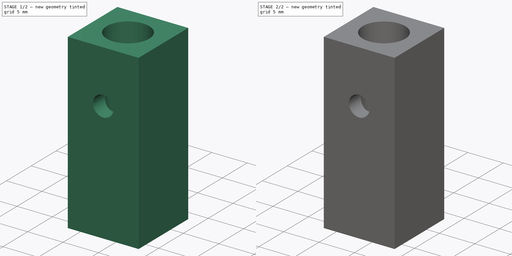
[diagram: build sequence overview — one tinted view per stage of 2, left to right]
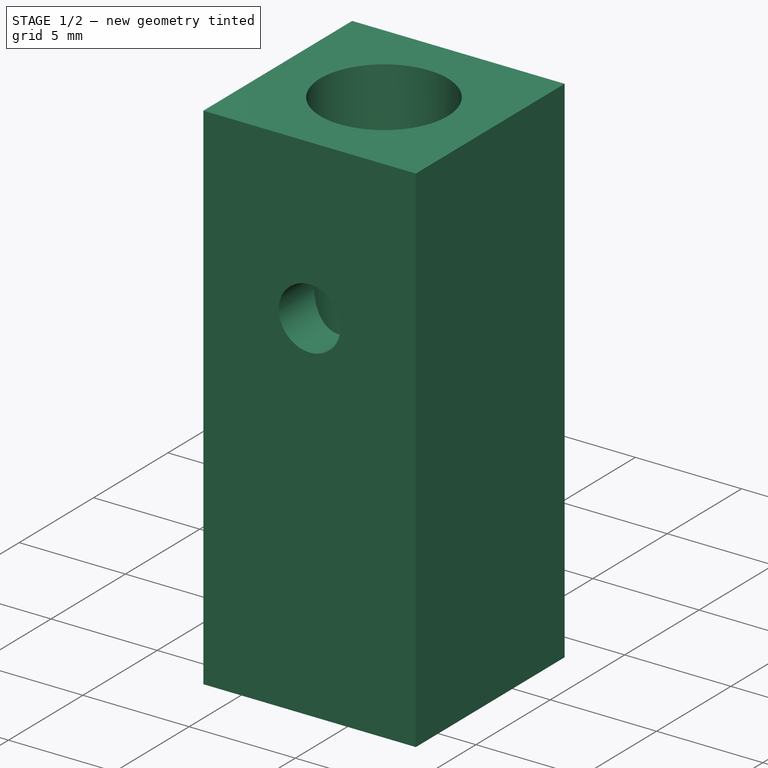
[diagram: stage 1 of 2 — iso view after this stage's code; geometry added in this stage tinted green]
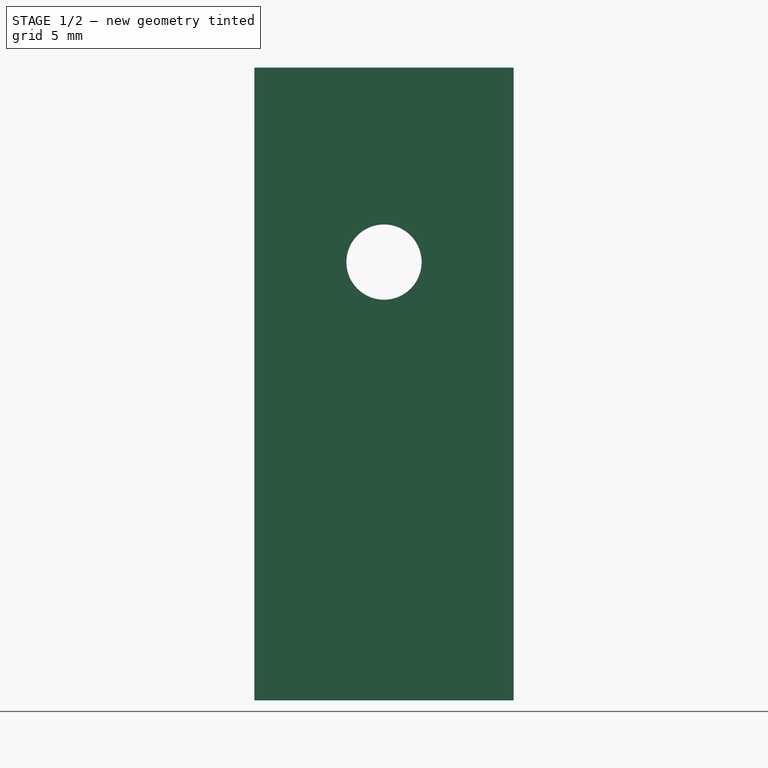
[diagram: stage 1 of 2 — front view after this stage's code; geometry added in this stage tinted green]
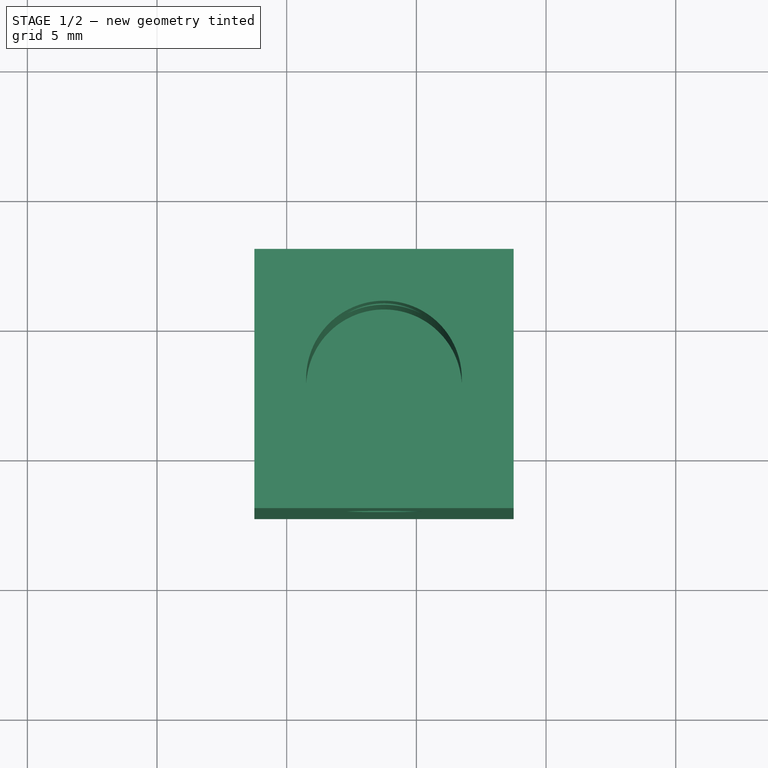
[diagram: stage 1 of 2 — top view after this stage's code; geometry added in this stage tinted green]
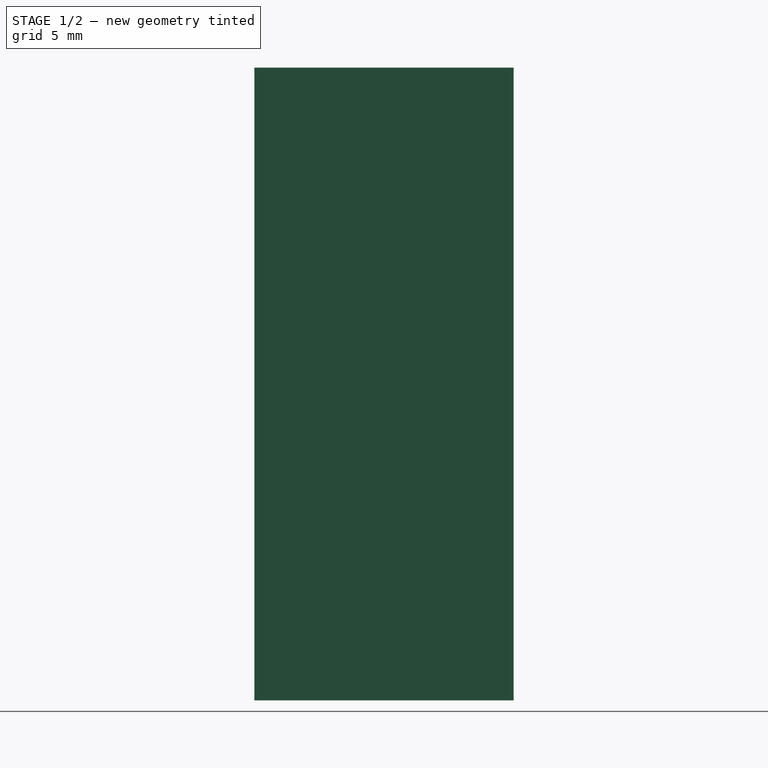
[diagram: stage 1 of 2 — right view after this stage's code; geometry added in this stage tinted green]
FCSTD DOCUMENT  (FreeCAD 2021.911R24301 +3846 (Git))
Label: Breakout_Dealie_Left_V2
License: All rights reserved
LicenseURL: http://en.wikipedia.org/wiki/All_rights_reserved
objects: PartDesign::SubShapeBinder×3, Sketcher::SketchObject×3, PartDesign::Pocket×2, PartDesign::Pad×1, PartDesign::Body×1, Part::Feature×1, Part::Refine×1, App::DocumentObjectGroup×1
note: 18 computed .brp shape members not serialized (recipe doc carries the construction recipe); baked Part::Feature solids carry a one-line shape summary decoded from their .brp

FEATURE [PartDesign::SubShapeBinder] Binder004  label="Binder004(Breakout_Dealie_Left_V2001 (Solid)001)"
  BindCopyOnChange = 0
  BindMode = 0
  ClaimChildren = false
  Context = -> Body001 [Binder004.]
  FillStyle = 0
  Fuse = false
  MakeFace = true
  PartialLoad = false
  Relative = true
  Support = -> [Refined002[Face2]]
  _Version = 7
FEATURE [Sketcher::SketchObject] Sketch004
  ExternalGeometry = -> [Binder004]
  FullyConstrained = true
  MapMode = 5
  Placement = pos=(0,437.746,0) rot=(0,0.707107,0.707107;3.14159rad)
  Support = -> [Binder004]
  sketch-geometry (6):
    g0: Circle [constr] CenterX=-423.752 CenterY=-87.6997 CenterZ=0 NormalX=0 NormalY=0 NormalZ=1 AngleXU=0 Radius=1.5
    g1: Circle CenterX=-423.752 CenterY=-87.6997 CenterZ=0 NormalX=0 NormalY=0 NormalZ=1 AngleXU=0 Radius=1.45
    g2: LineSegment StartX=-428.752 StartY=-80.1997 StartZ=0 EndX=-418.752 EndY=-80.1997 EndZ=0
    g3: LineSegment StartX=-418.752 StartY=-80.1997 StartZ=0 EndX=-418.752 EndY=-104.6 EndZ=0
    g4: LineSegment StartX=-418.752 StartY=-104.6 StartZ=0 EndX=-428.752 EndY=-104.6 EndZ=0
    g5: LineSegment StartX=-428.752 StartY=-104.6 StartZ=0 EndX=-428.752 EndY=-80.1997 EndZ=0
  constraints (15):
    c: PointOnObject(g-5,g0)
    c: PointOnObject(g-6,g0)
    c: PointOnObject(g-7,g0)
    c: Coincident(g1,g0)
    c: Diameter(g1) = 2.9
    c: Coincident(g2,g3)
    c: Coincident(g3,g4)
    c: Coincident(g4,g5)
    c: Coincident(g5,g2)
    c: Horizontal(g2)
    c: Horizontal(g4)
    c: Vertical(g3)
    c: Vertical(g5)
    c: Coincident(g2,g-3)
    c: Coincident(g3,g-4)
FEATURE [PartDesign::Pad] Pad002
  ClaimChildren = false
  Direction = (1,1,1)
  Fit = 0
  FitJoin = 0
  InnerFit = 0
  InnerFitJoin = 0
  InnerTaperAngle = 0
  InnerTaperAngleRev = 0
  Length = 10
  Length2 = 100
  Linearize = true
  NewSolid = false
  Profile = -> Sketch004
  Refine = true
  Reversed = true
  Suppress = false
  Type = 0
  _ProfileBasedVersion = 1
FEATURE [PartDesign::SubShapeBinder] Binder005  label="Binder005(Breakout_Dealie_Left_V2001 (Solid)001)"
  BindCopyOnChange = 0
  BindMode = 0
  ClaimChildren = false
  Context = -> Body001 [Binder005.]
  FillStyle = 0
  Fuse = false
  MakeFace = true
  PartialLoad = false
  Relative = true
  Support = -> [Refined002[Face994]]
  _Version = 7
FEATURE [Sketcher::SketchObject] Sketch005
  ExternalGeometry = -> [Binder005]
  FullyConstrained = true
  MapMode = 5
  Placement = pos=(0,0,-80.1997) rot=(0,0,1;0rad)
  Support = -> [Binder005]
  sketch-geometry (1):
    g0: Circle CenterX=423.752 CenterY=432.746 CenterZ=0 NormalX=0 NormalY=0 NormalZ=1 AngleXU=0 Radius=2.99999
  constraints (3):
    c: PointOnObject(g-3,g0)
    c: PointOnObject(g-4,g0)
    c: PointOnObject(g-5,g0)
FEATURE [PartDesign::Pocket] Pocket
  BaseFeature = -> Pad002
  ClaimChildren = false
  Fit = 0
  FitJoin = 0
  InnerFit = 0
  InnerFitJoin = 0
  InnerTaperAngle = 0
  InnerTaperAngleRev = 0
  Length = 19.4
  Length2 = 100
  Linearize = true
  NewSolid = false
  Profile = -> Sketch005
  Refine = true
  Suppress = false
  Type = 0
  _ProfileBasedVersion = 1
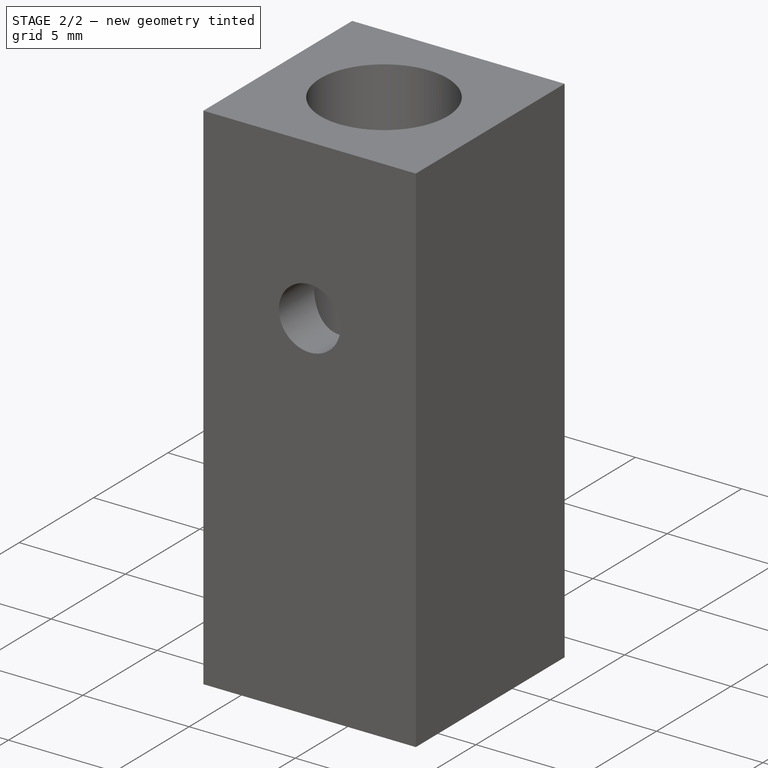
[diagram: stage 2 of 2 — iso view after this stage's code; geometry added in this stage tinted green]
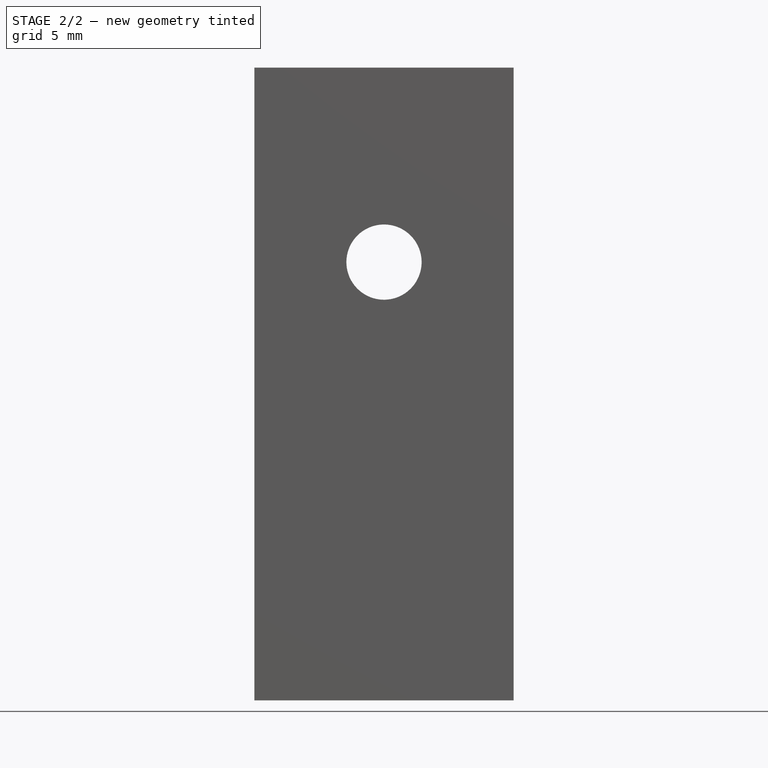
[diagram: stage 2 of 2 — front view after this stage's code; geometry added in this stage tinted green]
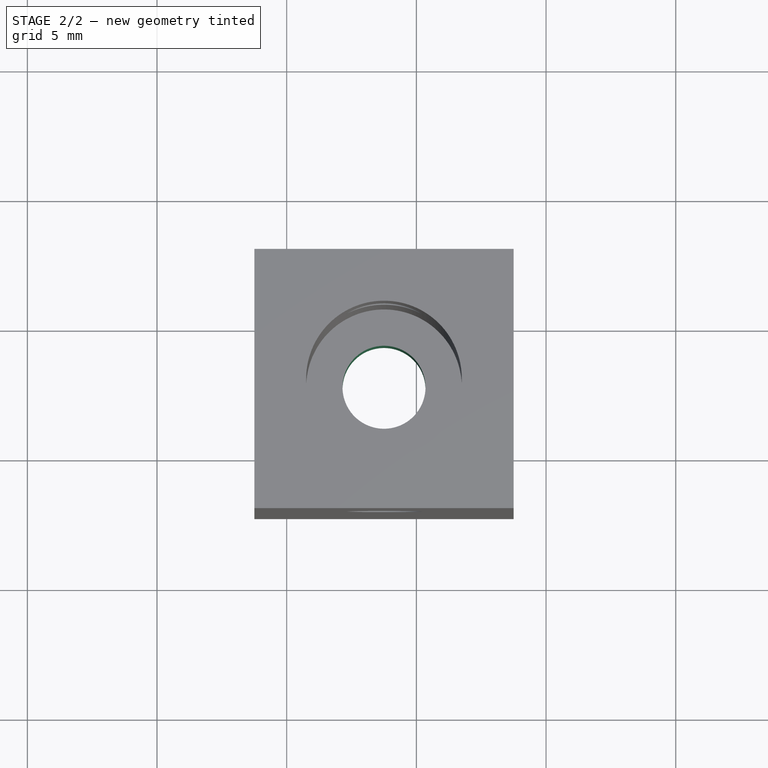
[diagram: stage 2 of 2 — top view after this stage's code; geometry added in this stage tinted green]
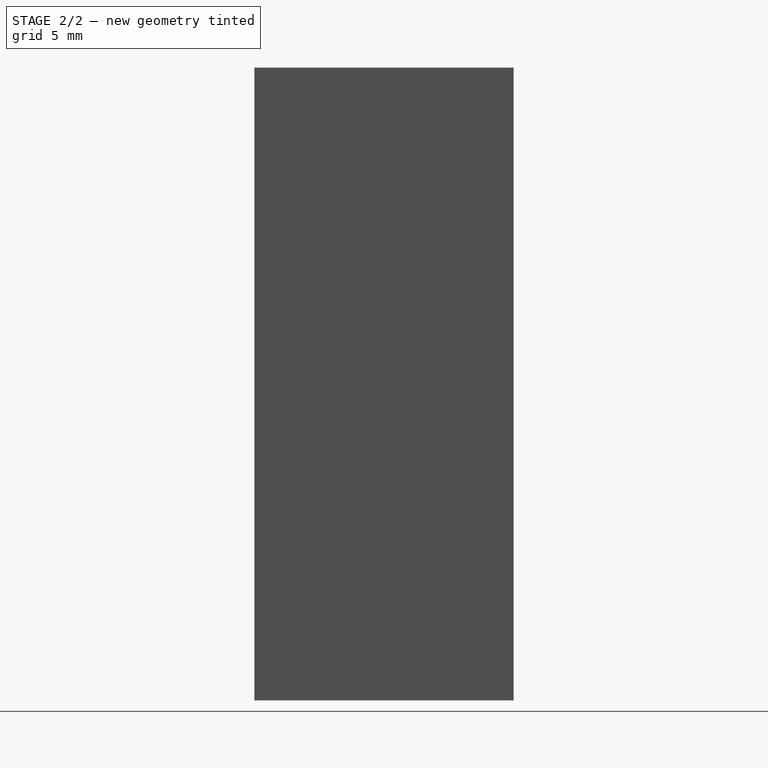
[diagram: stage 2 of 2 — right view after this stage's code; geometry added in this stage tinted green]
FEATURE [PartDesign::SubShapeBinder] Binder006  label="Binder006(Breakout_Dealie_Left_V2001 (Solid)001)"
  BindCopyOnChange = 0
  BindMode = 0
  ClaimChildren = false
  Context = -> Body001 [Binder006.]
  FillStyle = 0
  Fuse = false
  MakeFace = true
  PartialLoad = false
  Relative = true
  Support = -> [Refined002]
  _Version = 7
FEATURE [Sketcher::SketchObject] Sketch006
  ExternalGeometry = -> [Binder006]
  FullyConstrained = true
  MapMode = 5
  Placement = pos=(0,0,-104.6) rot=(1,0,0;3.14159rad)
  Support = -> [Binder006]
  sketch-geometry (1):
    g0: Circle CenterX=423.752 CenterY=-432.746 CenterZ=0 NormalX=0 NormalY=0 NormalZ=1 AngleXU=0 Radius=1.6
  constraints (3):
    c: PointOnObject(g-5,g0)
    c: PointOnObject(g-4,g0)
    c: PointOnObject(g-3,g0)
FEATURE [PartDesign::Pocket] Pocket001
  BaseFeature = -> Pocket
  ClaimChildren = false
  Fit = 0
  FitJoin = 0
  InnerFit = 0
  InnerFitJoin = 0
  InnerTaperAngle = 0
  InnerTaperAngleRev = 0
  Length = 5
  Length2 = 100
  Linearize = true
  NewSolid = false
  Profile = -> Sketch006
  Refine = true
  Suppress = false
  Type = 1
  _ProfileBasedVersion = 1
FEATURE [PartDesign::Body] Body001  label="Breakout Dealie Left V2"
  AutoGroupSolids = false
  ExportMode = 0
  Group = -> [Binder004,Sketch004,Pad002,Binder005,Sketch005,Pocket,Binder006,Sketch006,Pocket001]
  Origin = -> Origin001
  Tip = -> Pocket001
  _ExportChildren = -> [Binder004,Pad002,Binder005,Pocket,Binder006,Pocket001]
  _GroupVersion = 1
FEATURE [Part::Feature] Breakout_Dealie_Left_V2001_solid  label="Breakout_Dealie_Left_V2001 (Solid)"
  shape: bbox 10 x 10 x 24.4 mm, 2450 faces (baked)
FEATURE [Part::Refine] Refined002  label="Breakout_Dealie_Left_V2001 (Solid)001"
  Source = -> Breakout_Dealie_Left_V2001_solid
FEATURE [App::DocumentObjectGroup] Group  label="sources"
  ExportMode = 1
  Group = -> [Breakout_Dealie_Left_V2001_solid,Refined002]
  _GroupVersion = 1
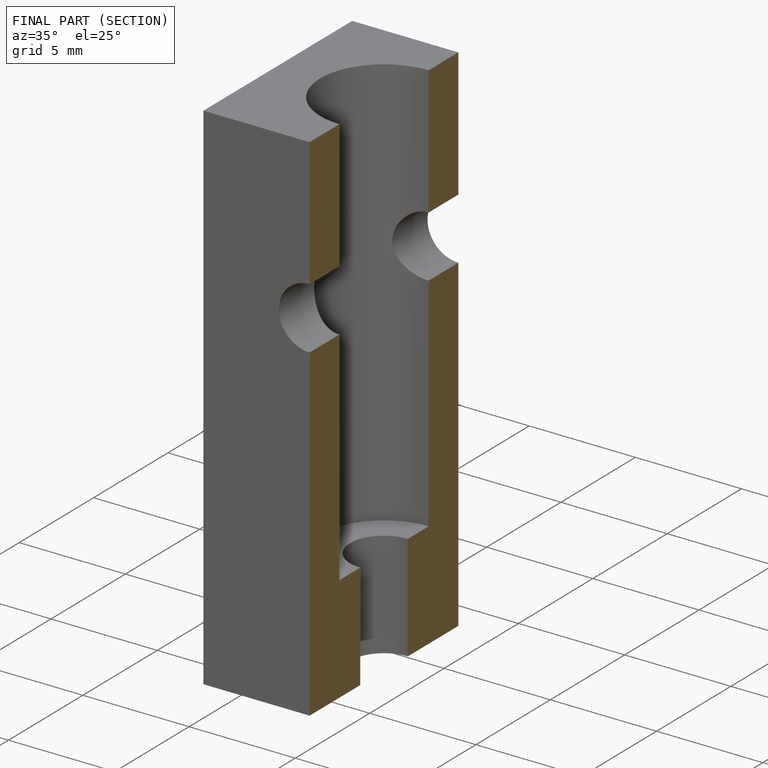
[diagram: finished part — half-section view (interior)]
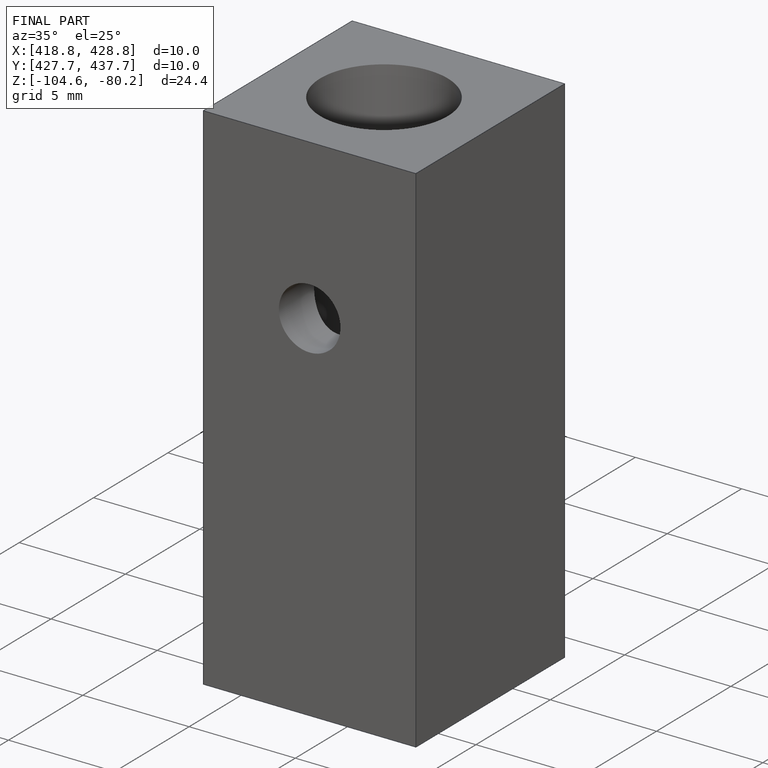
[diagram: finished part — iso view with bounding-box wireframe]
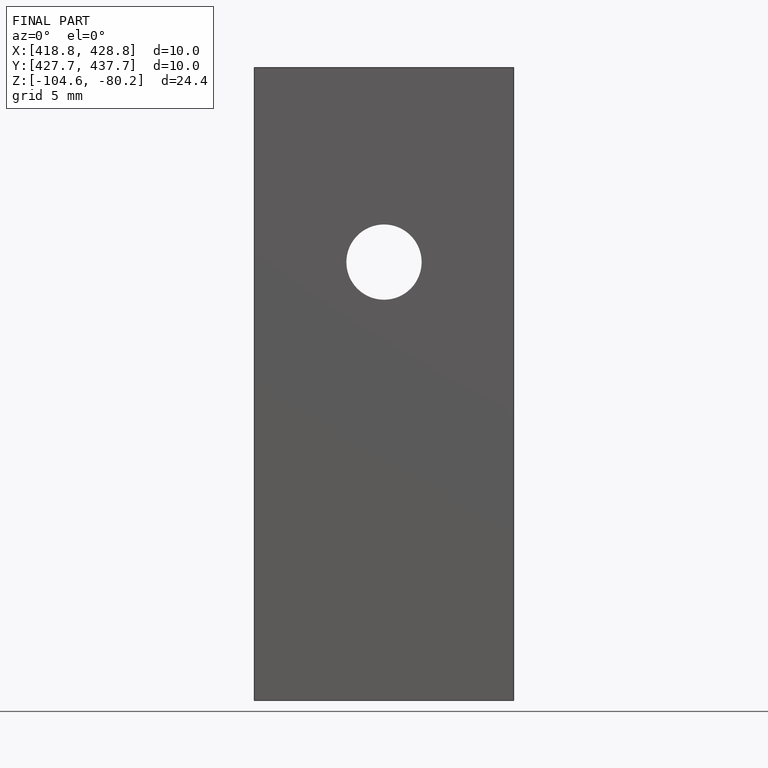
[diagram: finished part — front view with bounding-box wireframe]
